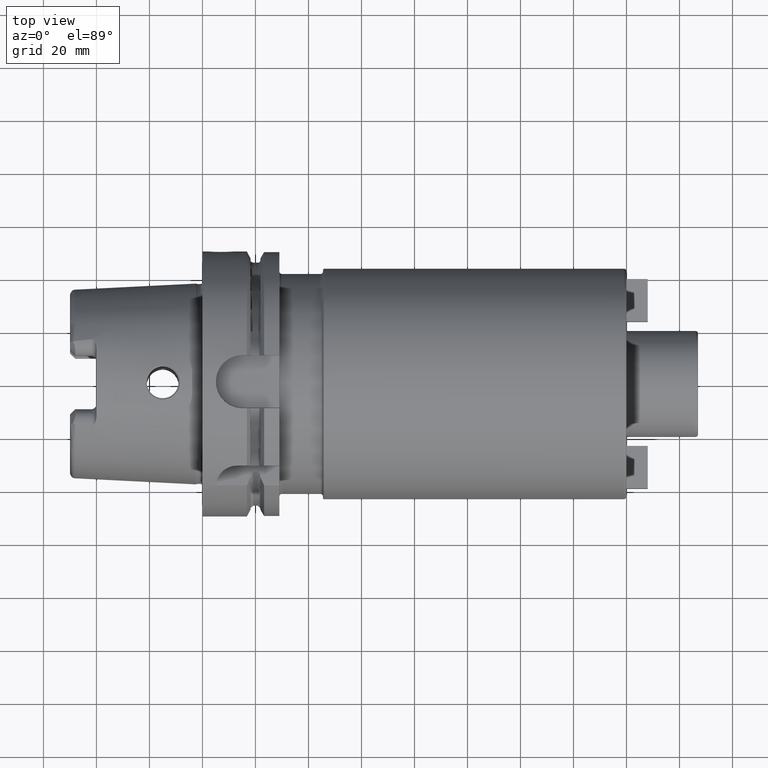
[diagram: clean part render]
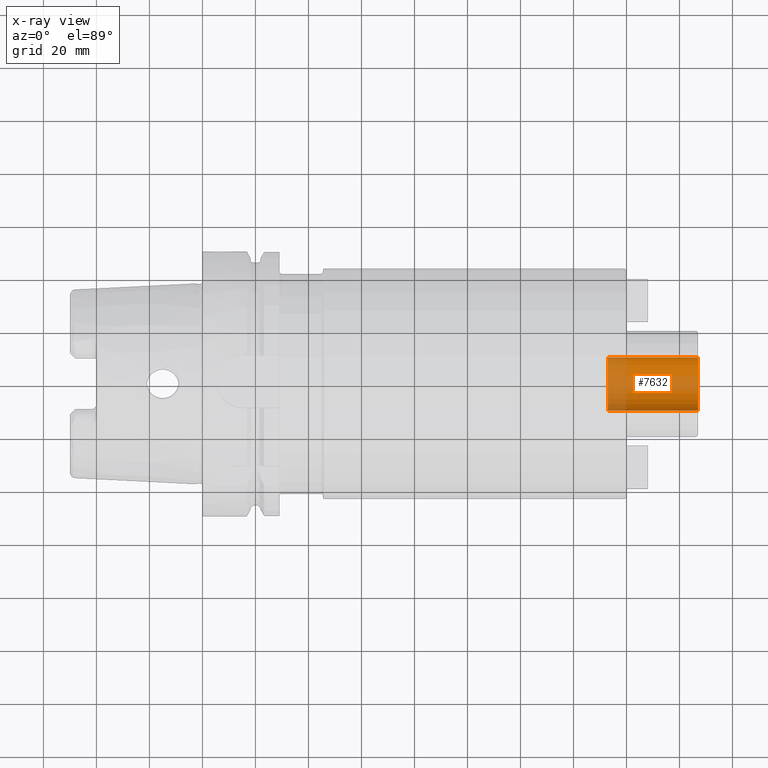
[diagram: x-ray — body ghosted, one internal face saturated and labeled with its STEP entity id]
A machine part, top view, then the same camera in x-ray: the body is ghosted and one INTERNAL B-rep face — a face not visible from any outside direction — is saturated and labeled: STEP entity #7632.
In plain terms, the highlighted cylindrical surface (edge-blend (fillet) strip) has radius 10 mm, axis along (1, 0, 0).
Its self-contained STEP definition (entity closure, byte-faithful):
#7567=CARTESIAN_POINT('',(1.87E2,0.E0,0.E0));
#7568=DIRECTION('',(-1.E0,0.E0,0.E0));
#7569=DIRECTION('',(0.E0,1.E0,0.E0));
#7570=AXIS2_PLACEMENT_3D('',#7567,#7568,#7569);
#7577=DIRECTION('',(-1.E0,0.E0,0.E0));
#7578=VECTOR('',#7577,3.4E1);
#7579=CARTESIAN_POINT('',(1.87E2,1.E1,0.E0));
#7580=LINE('',#7579,#7578);
#7581=DIRECTION('',(-1.E0,0.E0,0.E0));
#7582=VECTOR('',#7581,3.4E1);
#7583=CARTESIAN_POINT('',(1.87E2,-1.E1,0.E0));
#7584=LINE('',#7583,#7582);
#7585=CARTESIAN_POINT('',(1.53E2,0.E0,0.E0));
#7586=DIRECTION('',(1.E0,0.E0,0.E0));
#7587=DIRECTION('',(0.E0,-1.E0,0.E0));
#7588=AXIS2_PLACEMENT_3D('',#7585,#7586,#7587);
#7605=CARTESIAN_POINT('',(1.53E2,-1.E1,0.E0));
#7606=CARTESIAN_POINT('',(1.53E2,1.E1,0.E0));
#7607=VERTEX_POINT('',#7605);
#7608=VERTEX_POINT('',#7606);
#7609=CARTESIAN_POINT('',(1.87E2,-1.E1,0.E0));
#7610=CARTESIAN_POINT('',(1.87E2,1.E1,0.E0));
#7611=VERTEX_POINT('',#7609);
#7612=VERTEX_POINT('',#7610);
#7617=CARTESIAN_POINT('',(1.342295930627E2,0.E0,0.E0));
#7618=DIRECTION('',(1.E0,0.E0,0.E0));
#7619=DIRECTION('',(0.E0,-1.E0,0.E0));
#7620=AXIS2_PLACEMENT_3D('',#7617,#7618,#7619);
#7621=CYLINDRICAL_SURFACE('',#7620,1.E1);
#7623=ORIENTED_EDGE('',*,*,#7622,.T.);
#7625=ORIENTED_EDGE('',*,*,#7624,.T.);
#7627=ORIENTED_EDGE('',*,*,#7626,.T.);
#7629=ORIENTED_EDGE('',*,*,#7628,.F.);
#7630=EDGE_LOOP('',(#7623,#7625,#7627,#7629));
#7631=FACE_OUTER_BOUND('',#7630,.F.);
#7632=ADVANCED_FACE('',(#7631),#7621,.F.);
#7571=CIRCLE('',#7570,1.E1);
#7589=CIRCLE('',#7588,1.E1);
#7622=EDGE_CURVE('',#7612,#7611,#7571,.T.);
#7624=EDGE_CURVE('',#7611,#7607,#7584,.T.);
#7626=EDGE_CURVE('',#7607,#7608,#7589,.T.);
#7628=EDGE_CURVE('',#7612,#7608,#7580,.T.);